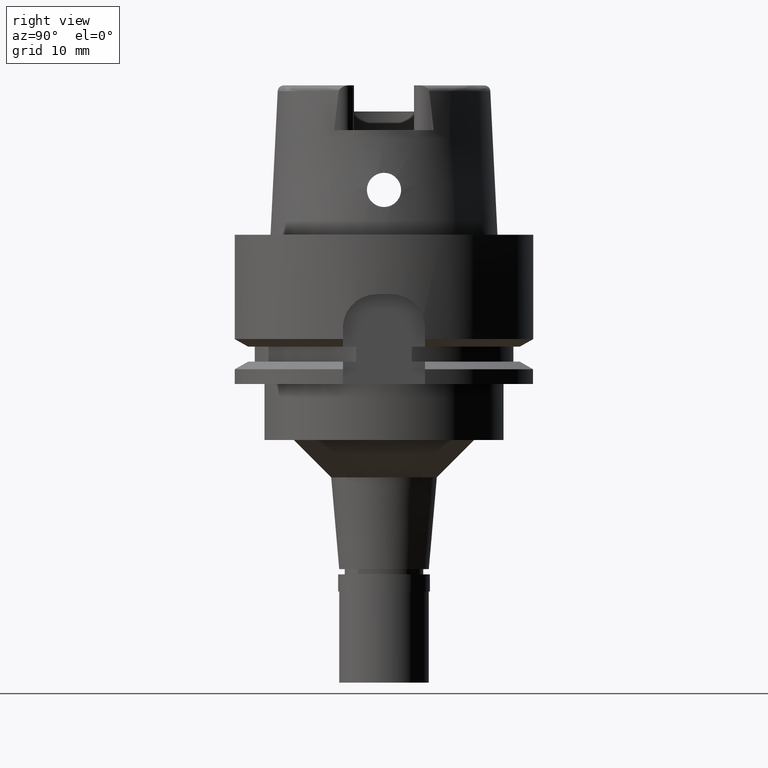
[diagram: clean part render]
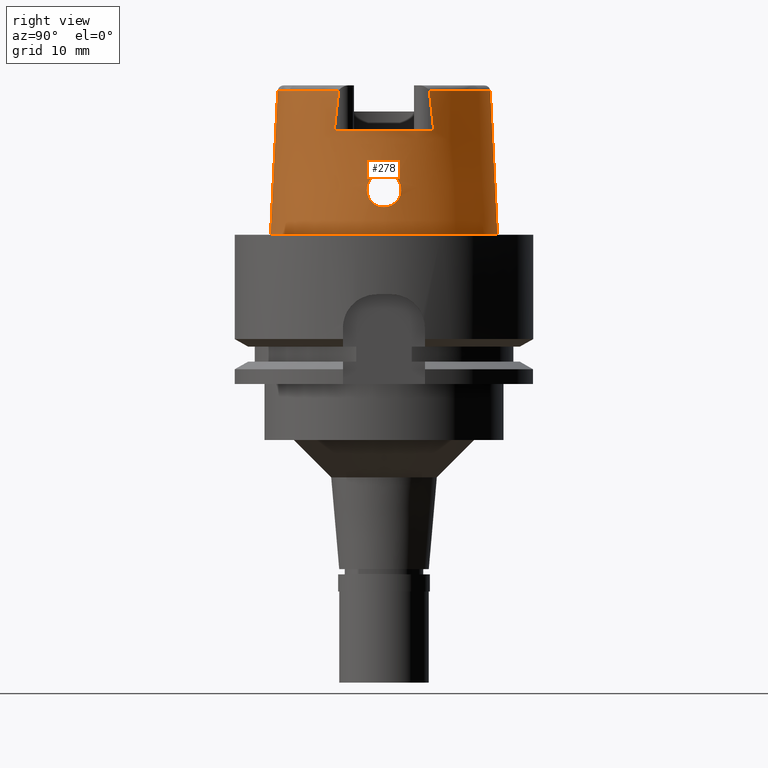
[diagram: same view with one face highlighted and labeled with its STEP entity id]
A machine part, right view. The second image highlights one B-rep face of the part: STEP entity #278.
In plain terms, the highlighted conical surface has half-angle 2.862 deg.
Its self-contained STEP definition (entity closure, byte-faithful):
#38 = EDGE_CURVE ( 'NONE', #2956, #3375, #676, .T. ) ;
#136 = CARTESIAN_POINT ( 'NONE',  ( 14.71767625970004190, -2.299002582693101981, 6.076948641586127131 ) ) ;
#165 = CARTESIAN_POINT ( 'NONE',  ( 14.75228631506212196, -1.217310660498344133, 7.951655185549658889 ) ) ;
#172 = CARTESIAN_POINT ( 'NONE',  ( 14.73141587697682553, 2.293502586207446292, 5.823495551064224784 ) ) ;
#178 = VERTEX_POINT ( 'NONE', #3545 ) ;
#195 = CARTESIAN_POINT ( 'NONE',  ( 14.76993171643134062, -0.8162572405183543545, 8.150449937431961445 ) ) ;
#199 = CARTESIAN_POINT ( 'NONE',  ( 14.89874937048598547, 1.588294339937097677, 4.336436091918786317 ) ) ;
#218 = CARTESIAN_POINT ( 'NONE',  ( 14.72916548316760732, -1.626404358665610062, 7.626288617414119564 ) ) ;
#221 = CARTESIAN_POINT ( 'NONE',  ( 14.70316458318627539, 2.128786717770993597, 6.870819045354424226 ) ) ;
#241 = CARTESIAN_POINT ( 'NONE',  ( 14.70734865897767030, -2.012829096111526272, 7.114972761334357187 ) ) ;
#250 = CARTESIAN_POINT ( 'NONE',  ( 14.81276530918017542, 2.042075185501032841, 4.941057185734546664 ) ) ;
#273 = CARTESIAN_POINT ( 'NONE',  ( 14.79665847417233238, 2.107828384196535954, 5.079440114917678883 ) ) ;
#278 = ADVANCED_FACE ( 'NONE', ( #1580, #2836 ), #1092, .T. ) ;
#323 = CARTESIAN_POINT ( 'NONE',  ( 14.74847246292093850, 1.290096246370493915, 7.904119940138124356 ) ) ;
#336 = EDGE_CURVE ( 'NONE', #1242, #2491, #1003, .T. ) ;
#353 = CARTESIAN_POINT ( 'NONE',  ( 14.76533985865896881, 0.9349772983325833620, 8.101496177720308722 ) ) ;
#360 = DIRECTION ( 'NONE',  ( 0.9046212760392207120, -0.4262163147243098749, 0.0000000000000000000 ) ) ;
#366 = EDGE_LOOP ( 'NONE', ( #2112, #5140, #4776, #3522, #2845, #5173, #3252, #5054 ) ) ;
#469 = DIRECTION ( 'NONE',  ( 0.0000000000000000000, 0.0000000000000000000, -1.000000000000000000 ) ) ;
#476 = CARTESIAN_POINT ( 'NONE',  ( 0.0000000000000000000, 1.342457523729000028E-14, 14.00000000000000000 ) ) ;
#497 = CARTESIAN_POINT ( 'NONE',  ( 15.00364376493542196, 0.5092072746798816940, 3.755833491668623125 ) ) ;
#557 = CARTESIAN_POINT ( 'NONE',  ( 14.73231278931818444, -1.575466967164326437, 7.676104568226610247 ) ) ;
#576 = DIRECTION ( 'NONE',  ( 0.0000000000000000000, 0.0000000000000000000, 1.000000000000000000 ) ) ;
#583 = CARTESIAN_POINT ( 'NONE',  ( 14.76141212800968816, -2.229000420792751846, 5.427573020413282379 ) ) ;
#609 = CARTESIAN_POINT ( 'NONE',  ( 14.72141866946021693, -1.755152768537556529, 7.496973021721498043 ) ) ;
#613 = CARTESIAN_POINT ( 'NONE',  ( 14.90244606698512264, 1.564221168109756643, 4.313564913394053235 ) ) ;
#641 = CARTESIAN_POINT ( 'NONE',  ( 14.72894740190619878, -1.629897061922214618, 7.622786359402593526 ) ) ;
#646 = CARTESIAN_POINT ( 'NONE',  ( 14.85058644495361868, 1.867006390483603839, 4.654736456440725867 ) ) ;
#664 = CARTESIAN_POINT ( 'NONE',  ( 14.70276236840794581, -2.228093348387354844, 6.589865896464043971 ) ) ;
#667 = CARTESIAN_POINT ( 'NONE',  ( 14.73849372628558818, 2.283477778816184411, 5.715463592153516181 ) ) ;
#676 = CIRCLE ( 'NONE', #3465, 14.49998341749000730 ) ;
#684 = EDGE_CURVE ( 'NONE', #178, #3923, #3905, .T. ) ;
#687 = CARTESIAN_POINT ( 'NONE',  ( 15.01500049747999910, 0.0000000000000000000, 3.700000000000000178 ) ) ;
#690 = CARTESIAN_POINT ( 'NONE',  ( 14.98148096618434266, 0.8665457444615898286, 3.869470622001208948 ) ) ;
#715 = CARTESIAN_POINT ( 'NONE',  ( 14.97211963843678539, 0.9852319895332828370, 3.918198108977875460 ) ) ;
#719 = DIRECTION ( 'NONE',  ( 0.0000000000000000000, 0.04993926899656212642, -0.9987522562738413434 ) ) ;
#735 = CARTESIAN_POINT ( 'NONE',  ( 14.76437919039956270, 0.9579855228098469455, 8.091067039116316195 ) ) ;
#759 = CARTESIAN_POINT ( 'NONE',  ( 14.89006592629557524, -1.643013560711590992, 4.390467205846114496 ) ) ;
#789 = CARTESIAN_POINT ( 'NONE',  ( 14.83194418996438202, -1.956775742093797010, 4.790948031796865791 ) ) ;
#896 = CARTESIAN_POINT ( 'NONE',  ( 12.88000000001000167, -6.659963896840999986, 14.00000000000000000 ) ) ;
#905 = CARTESIAN_POINT ( 'NONE',  ( 15.01216131434386725, 0.2892617628193787649, 3.713380421805315024 ) ) ;
#923 = CARTESIAN_POINT ( 'NONE',  ( 12.87999235482999794, -6.068467499471000615, 19.23976188443000268 ) ) ;
#947 = B_SPLINE_CURVE_WITH_KNOTS ( 'NONE', 3,
 ( #1732, #1704, #4238, #2518 ),
 .UNSPECIFIED., .F., .F.,
 ( 4, 4 ),
 ( 0.0000000000000000000, 1.000000000000000000 ),
 .UNSPECIFIED. ) ;
#955 = CARTESIAN_POINT ( 'NONE',  ( 14.76254134879655133, -1.002543099455074360, 8.071382481863379255 ) ) ;
#962 = CARTESIAN_POINT ( 'NONE',  ( 15.01500049748000798, 0.1430262828768870953, 3.700000000000001954 ) ) ;
#987 = CARTESIAN_POINT ( 'NONE',  ( 14.75791429779261676, -1.102961271661919485, 8.018639627650955504 ) ) ;
#1003 = CIRCLE ( 'NONE', #2034, 14.23797715756000315 ) ;
#1013 = CARTESIAN_POINT ( 'NONE',  ( 14.72980081936482577, -1.616212752232294658, 7.636443267789803535 ) ) ;
#1022 = CARTESIAN_POINT ( 'NONE',  ( 14.73773361949272243, 1.484091672816620688, 7.758016757752243642 ) ) ;
#1043 = CARTESIAN_POINT ( 'NONE',  ( 14.70908610932427329, -1.977317371658061207, 7.177218298108765104 ) ) ;
#1048 = CARTESIAN_POINT ( 'NONE',  ( 14.70267385795589554, 2.192066129422513665, 6.697352079167274042 ) ) ;
#1061 = AXIS2_PLACEMENT_3D ( 'NONE', #1853, #576, #2172 ) ;
#1067 = CARTESIAN_POINT ( 'NONE',  ( 14.72895214007647269, -1.629820688689543218, 7.622863066839102864 ) ) ;
#1072 = CARTESIAN_POINT ( 'NONE',  ( 14.72890820762632913, 1.630547541442574744, 7.622132767570231060 ) ) ;
#1092 = CONICAL_SURFACE ( 'NONE', #4845, 14.71899189528999941, 0.04996004983832824653 ) ;
#1094 = CARTESIAN_POINT ( 'NONE',  ( 14.85758912622367056, -1.829465614578048127, 4.604014456386703813 ) ) ;
#1098 = CARTESIAN_POINT ( 'NONE',  ( 14.91310040128086278, 1.491596977094940657, 4.248715427885991325 ) ) ;
#1103 = VERTEX_POINT ( 'NONE', #5167 ) ;
#1118 = CARTESIAN_POINT ( 'NONE',  ( 15.01500049748000976, -0.2875035635757235974, 3.700000000000000178 ) ) ;
#1121 = CARTESIAN_POINT ( 'NONE',  ( 14.70427108765025537, 2.079072153534958112, 6.991204345735112291 ) ) ;
#1143 = CARTESIAN_POINT ( 'NONE',  ( 14.95142920726407354, -1.189364500599814134, 4.029933525659705751 ) ) ;
#1153 = DIRECTION ( 'NONE',  ( 0.0000000000000000000, -1.000000000000000000, 0.0000000000000000000 ) ) ;
#1166 = CARTESIAN_POINT ( 'NONE',  ( 14.77198895599761386, -2.195978878843794391, 5.315014128331677412 ) ) ;
#1193 = CARTESIAN_POINT ( 'NONE',  ( 14.82171604948048049, -2.003677436404591727, 4.869988757433167059 ) ) ;
#1219 = CARTESIAN_POINT ( 'NONE',  ( 14.76682797686947524, 0.8979533740441775214, 8.117473815995689179 ) ) ;
#1226 = CARTESIAN_POINT ( 'NONE',  ( 0.0000000000000000000, 1.342457523729000028E-14, 9.619975707600000092 ) ) ;
#1242 = VERTEX_POINT ( 'NONE', #5362 ) ;
#1358 = CARTESIAN_POINT ( 'NONE',  ( 14.74919042734418362, -1.276605933380732694, 7.913187108520279622 ) ) ;
#1376 = CIRCLE ( 'NONE', #4604, 14.23797715755999782 ) ;
#1389 = CARTESIAN_POINT ( 'NONE',  ( 14.70352691453511618, -2.113722125166870303, 6.906774030892097294 ) ) ;
#1421 = CARTESIAN_POINT ( 'NONE',  ( 14.76817753171319758, -0.8632320482297011210, 8.131866818023137711 ) ) ;
#1426 = CARTESIAN_POINT ( 'NONE',  ( 14.72897162154008655, 1.629492673762285238, 7.623193086134354424 ) ) ;
#1445 = CARTESIAN_POINT ( 'NONE',  ( 14.76520709175152923, -0.9397137385385229136, 8.100200530211534300 ) ) ;
#1453 = CARTESIAN_POINT ( 'NONE',  ( 14.70331942151415916, 2.224931728614660820, 6.587787508650070123 ) ) ;
#1472 = CARTESIAN_POINT ( 'NONE',  ( 14.70331610145946577, -2.122033033464918006, 6.887168763623463974 ) ) ;
#1477 = CARTESIAN_POINT ( 'NONE',  ( 14.70693175492837135, 2.017990185375086565, 7.113643816040142731 ) ) ;
#1500 = CARTESIAN_POINT ( 'NONE',  ( 14.72032078236328623, 1.774994588814734930, 7.463238833077070922 ) ) ;
#1504 = EDGE_CURVE ( 'NONE', #2491, #3663, #2166, .T. ) ;
#1516 = CARTESIAN_POINT ( 'NONE',  ( 14.83552753177908912, -1.939738082407616915, 4.764066888189723237 ) ) ;
#1520 = CARTESIAN_POINT ( 'NONE',  ( 14.82509907391835036, 1.988183648409787452, 4.841186137168685732 ) ) ;
#1544 = CARTESIAN_POINT ( 'NONE',  ( 14.92935449852489427, -1.380129507212131568, 4.153857573818053872 ) ) ;
#1572 = CARTESIAN_POINT ( 'NONE',  ( 14.79786671459564928, -2.103604988163472189, 5.067853605972056030 ) ) ;
#1574 = CARTESIAN_POINT ( 'NONE',  ( 14.75631241698364526, 1.137656487422808338, 8.000363067000138884 ) ) ;
#1580 = FACE_OUTER_BOUND ( 'NONE', #366, .T. ) ;
#1589 = B_SPLINE_CURVE_WITH_KNOTS ( 'NONE', 3,
 ( #896, #5052, #4670, #923 ),
 .UNSPECIFIED., .F., .F.,
 ( 4, 4 ),
 ( 0.0000000000000000000, 1.000000000000000000 ),
 .UNSPECIFIED. ) ;
#1594 = CARTESIAN_POINT ( 'NONE',  ( 14.97982148424780036, -0.8874131963936028322, 3.878068404993943563 ) ) ;
#1606 = CARTESIAN_POINT ( 'NONE',  ( 0.0000000000000000000, 1.459778984583999657E-14, 19.23995141520000018 ) ) ;
#1623 = CARTESIAN_POINT ( 'NONE',  ( 14.74876045483737919, 1.284696013801750247, 7.907764096513406393 ) ) ;
#1645 = CIRCLE ( 'NONE', #1061, 15.20000663301000010 ) ;
#1650 = B_SPLINE_CURVE_WITH_KNOTS ( 'NONE', 3,
 ( #5169, #2306, #2233, #3138, #4817, #3110, #1886, #195, #3476, #1421, #3561, #2722, #1445, #955, #987, #5220, #3083, #165, #3535, #4787, #1861, #1358, #3919, #3950, #2259, #557, #4759, #1013, #5137, #218, #2667, #4361, #1067, #641, #3998, #5193, #609, #4704, #1043, #241, #2696, #4391, #2287, #1389, #3975, #1472, #4413, #664, #1909, #5111, #2614, #3057, #136, #2208, #4736, #2640, #4331, #583, #1166, #3640, #4099, #3612, #2823, #3218, #1572, #4512, #4022, #1193, #5276, #789, #1516, #2008, #5300, #3242, #1094, #2747, #2852, #4912, #1980, #759, #3190, #2410, #1544, #1143, #3695, #4462, #4860, #2331, #5255, #4438, #1594, #4840, #1118, #687 ),
 .UNSPECIFIED., .F., .F.,
 ( 4, 2, 2, 1, 1, 1, 2, 2, 2, 2, 1, 1, 1, 2, 2, 2, 2, 2, 1, 1, 1, 2, 2, 2, 2, 1, 1, 2, 2, 2, 2, 2, 2, 2, 2, 1, 1, 2, 2, 2, 2, 1, 2, 2, 2, 1, 1, 2, 2, 2, 2, 1, 1, 2, 2, 4 ),
 ( 0.0000000000000000000, 0.06250000000007399636, 0.09375000000011098067, 0.1093750000001295075, 0.1171875000001387501, 0.1210937500001432326, 0.1230468750001456057, 0.1250000000001479927, 0.1562500000001862399, 0.1718750000002054468, 0.1796875000002152445, 0.1835937500002201572, 0.1855468750002224609, 0.1865234375002237099, 0.1875000000002249867, 0.2187500000002663147, 0.2343750000002870204, 0.2421875000002973455, 0.2460937500003024248, 0.2480468750003053668, 0.2490234375003047562, 0.2495117187503044509, 0.2500000000003041456, 0.3125000000002758349, 0.3437500000002616796, 0.3593750000002546297, 0.3671875000002512435, 0.3710937500002496336, 0.3750000000002479128, 0.4375000000002196576, 0.4687500000002055023, 0.4843750000001985079, 0.5000000000001914024, 0.5625000000001644240, 0.5937500000001509903, 0.6093750000001443290, 0.6171875000001411093, 0.6210937500001395550, 0.6250000000001381117, 0.6562500000001273426, 0.6718750000001220135, 0.6796875000001192380, 0.6835937500001180167, 0.6875000000001166844, 0.7187500000001063594, 0.7343750000001009193, 0.7421875000000982547, 0.7460937500000967004, 0.7500000000000952571, 0.8125000000000712763, 0.8437500000000595080, 0.8593750000000534017, 0.8671875000000504041, 0.8710937500000488498, 0.8750000000000474065, 1.000000000000000000 ),
 .UNSPECIFIED. ) ;
#1658 = CARTESIAN_POINT ( 'NONE',  ( 0.0000000000000000000, 1.459778984583999657E-14, 19.23995141520000018 ) ) ;
#1704 = CARTESIAN_POINT ( 'NONE',  ( 12.88000426041353208, 6.264427332332246579, 17.56902546515146213 ) ) ;
#1726 = CARTESIAN_POINT ( 'NONE',  ( 0.0000000000000000000, -14.23797715755999782, 19.23995141520000018 ) ) ;
#1732 = CARTESIAN_POINT ( 'NONE',  ( 12.88000642478999858, 6.068395837171999929, 19.23995141520000018 ) ) ;
#1750 = CARTESIAN_POINT ( 'NONE',  ( 0.0000000000000000000, 15.20000663301000010, 5.684341886080998387E-14 ) ) ;
#1814 = EDGE_CURVE ( 'NONE', #3923, #178, #1650, .T. ) ;
#1835 = CARTESIAN_POINT ( 'NONE',  ( 14.72920898909261389, 2.295956629724304587, 5.859173630733694793 ) ) ;
#1853 = CARTESIAN_POINT ( 'NONE',  ( 0.0000000000000000000, 1.342457523729000028E-14, 5.684341886080998387E-14 ) ) ;
#1861 = CARTESIAN_POINT ( 'NONE',  ( 14.74943395429672854, -1.272009482133531932, 7.916246199921465276 ) ) ;
#1865 = CARTESIAN_POINT ( 'NONE',  ( 14.93067085956539586, 1.362081213460759388, 4.144859030512717091 ) ) ;
#1884 = EDGE_CURVE ( 'NONE', #3987, #2956, #947, .T. ) ;
#1886 = CARTESIAN_POINT ( 'NONE',  ( 14.77224969526151988, -0.7504315452637793094, 8.174775488228240405 ) ) ;
#1892 = CARTESIAN_POINT ( 'NONE',  ( 14.98233880085519587, 0.8555171635354590354, 3.865009476150681689 ) ) ;
#1909 = CARTESIAN_POINT ( 'NONE',  ( 14.70725146919830806, -2.271296696674846238, 6.369860449235602573 ) ) ;
#1916 = CARTESIAN_POINT ( 'NONE',  ( 14.89480408139225176, 1.613594842503107252, 4.360975711325354887 ) ) ;
#1939 = CARTESIAN_POINT ( 'NONE',  ( 14.96044863519054857, 1.107243322350721426, 3.978464806064026416 ) ) ;
#1980 = CARTESIAN_POINT ( 'NONE',  ( 14.88789267672697569, -1.656189432506797177, 4.404028214600329783 ) ) ;
#2008 = CARTESIAN_POINT ( 'NONE',  ( 14.83794318965351877, -1.928155063099321165, 4.746073152908883763 ) ) ;
#2034 = AXIS2_PLACEMENT_3D ( 'NONE', #1606, #4196, #360 ) ;
#2035 = CARTESIAN_POINT ( 'NONE',  ( 14.78499286951999991, -6.884507511411997731E-14, 8.300000000000000711 ) ) ;
#2061 = CARTESIAN_POINT ( 'NONE',  ( 14.74608686374363309, 1.334479646745683201, 7.873420511268546029 ) ) ;
#2096 = CARTESIAN_POINT ( 'NONE',  ( 0.0000000000000000000, -15.20000663301000010, 1.527666881883999820E-13 ) ) ;
#2112 = ORIENTED_EDGE ( 'NONE', *, *, #3455, .T. ) ;
#2163 = DIRECTION ( 'NONE',  ( 0.8882768779220027167, 0.4593083802296007434, 0.0000000000000000000 ) ) ;
#2166 = LINE ( 'NONE', #1726, #4808 ) ;
#2172 = DIRECTION ( 'NONE',  ( 0.0000000000000000000, -1.000000000000000000, 0.0000000000000000000 ) ) ;
#2208 = CARTESIAN_POINT ( 'NONE',  ( 14.71946357150132201, -2.299931417574567316, 6.038631396490869996 ) ) ;
#2233 = CARTESIAN_POINT ( 'NONE',  ( 14.78353128680934425, -0.2842508077870649630, 8.287348239702737374 ) ) ;
#2259 = CARTESIAN_POINT ( 'NONE',  ( 14.73731322935646126, -1.491757212854901260, 7.752241755842974591 ) ) ;
#2265 = CARTESIAN_POINT ( 'NONE',  ( 14.89626255973261415, 1.604314165315595453, 4.351879905615374966 ) ) ;
#2287 = CARTESIAN_POINT ( 'NONE',  ( 14.70377975280852034, -2.104433637918413869, 6.928327330150398033 ) ) ;
#2290 = CARTESIAN_POINT ( 'NONE',  ( 14.70255504530075541, 2.174209788349426020, 6.751929027802959560 ) ) ;
#2306 = CARTESIAN_POINT ( 'NONE',  ( 14.78499286952000347, -0.1391443178128511649, 8.300000000000004263 ) ) ;
#2312 = CARTESIAN_POINT ( 'NONE',  ( 14.98371403018676595, 0.8374727235028129879, 3.857867046278657064 ) ) ;
#2331 = CARTESIAN_POINT ( 'NONE',  ( 14.97620123050037400, -0.9315650298692005338, 3.896984939982998775 ) ) ;
#2336 = CARTESIAN_POINT ( 'NONE',  ( 14.88524741299715437, 1.673832983251893891, 4.420767604266703010 ) ) ;
#2362 = CARTESIAN_POINT ( 'NONE',  ( 14.74496504134877561, 1.355034789434619524, 7.858533769061100571 ) ) ;
#2410 = CARTESIAN_POINT ( 'NONE',  ( 14.91207770429788404, -1.508033510748362671, 4.254843883691552087 ) ) ;
#2481 = VERTEX_POINT ( 'NONE', #1750 ) ;
#2491 = VERTEX_POINT ( 'NONE', #3841 ) ;
#2500 = DIRECTION ( 'NONE',  ( 0.0000000000000000000, 1.000000000000000000, 0.0000000000000000000 ) ) ;
#2518 = CARTESIAN_POINT ( 'NONE',  ( 12.88000000001000167, 6.659963896840999986, 14.00000000000000000 ) ) ;
#2533 = CARTESIAN_POINT ( 'NONE',  ( 15.00009478601523405, 0.5826109664704614000, 3.773707586094883659 ) ) ;
#2581 = CARTESIAN_POINT ( 'NONE',  ( 12.88000000001000167, -6.659963896840999986, 14.00000000000000000 ) ) ;
#2614 = CARTESIAN_POINT ( 'NONE',  ( 14.71314478544786297, -2.292722928692878526, 6.186483723912187038 ) ) ;
#2640 = CARTESIAN_POINT ( 'NONE',  ( 14.73740417386287049, -2.288223965528690673, 5.723351743464057506 ) ) ;
#2667 = CARTESIAN_POINT ( 'NONE',  ( 14.72904470529613619, -1.628337541179609937, 7.624351793635763208 ) ) ;
#2673 = CARTESIAN_POINT ( 'NONE',  ( 14.74145531237505402, 1.418445424564565904, 7.810745794140411924 ) ) ;
#2696 = CARTESIAN_POINT ( 'NONE',  ( 14.70535003485825243, -2.059696689897931421, 7.024114667794181699 ) ) ;
#2700 = CARTESIAN_POINT ( 'NONE',  ( 14.72510000376157713, 2.299199412090375816, 5.929779096424321772 ) ) ;
#2722 = CARTESIAN_POINT ( 'NONE',  ( 14.76759430106974236, -0.8784006115277462889, 8.125659336855521886 ) ) ;
#2725 = CARTESIAN_POINT ( 'NONE',  ( 14.72329514493144309, 2.299987528917621482, 5.962788372749198373 ) ) ;
#2747 = CARTESIAN_POINT ( 'NONE',  ( 14.87054952517660311, -1.757719365221303010, 4.516135905363566572 ) ) ;
#2753 = CARTESIAN_POINT ( 'NONE',  ( 14.70884834798430951, 2.286205315796554505, 6.292987651726250853 ) ) ;
#2780 = CARTESIAN_POINT ( 'NONE',  ( 14.72849940320244144, 1.637350214640302726, 7.615270147483292007 ) ) ;
#2823 = CARTESIAN_POINT ( 'NONE',  ( 14.78936246627974960, -2.135424661765528143, 5.145562157664562264 ) ) ;
#2836 = FACE_BOUND ( 'NONE', #3033, .T. ) ;
#2840 = EDGE_CURVE ( 'NONE', #1103, #2481, #4054, .T. ) ;
#2845 = ORIENTED_EDGE ( 'NONE', *, *, #2840, .F. ) ;
#2852 = CARTESIAN_POINT ( 'NONE',  ( 14.87704102443288079, -1.720762379263403474, 4.473081528570273413 ) ) ;
#2856 = CARTESIAN_POINT ( 'NONE',  ( 14.76721472501559695, 0.8881463648275682576, 8.121608339782209640 ) ) ;
#2919 = DIRECTION ( 'NONE',  ( 0.0000000000000000000, 0.0000000000000000000, -1.000000000000000000 ) ) ;
#2956 = VERTEX_POINT ( 'NONE', #5284 ) ;
#3033 = EDGE_LOOP ( 'NONE', ( #5041, #4763 ) ) ;
#3057 = CARTESIAN_POINT ( 'NONE',  ( 14.71456559357674010, -2.295400163583385389, 6.149906830040777983 ) ) ;
#3075 = EDGE_CURVE ( 'NONE', #1103, #3987, #1376, .T. ) ;
#3083 = CARTESIAN_POINT ( 'NONE',  ( 14.75363946424168127, -1.190479772728968877, 7.968039648761720883 ) ) ;
#3087 = CARTESIAN_POINT ( 'NONE',  ( 14.73066733280895413, 1.603003007478596587, 7.651077491299814071 ) ) ;
#3110 = CARTESIAN_POINT ( 'NONE',  ( 14.77403099919012064, -0.6940052000294310020, 8.193146594062753252 ) ) ;
#3118 = CARTESIAN_POINT ( 'NONE',  ( 14.99024636951172695, 0.7469238850230833782, 3.824062172420758188 ) ) ;
#3138 = CARTESIAN_POINT ( 'NONE',  ( 14.77914653867739858, -0.5065138973274035950, 8.244801504513016965 ) ) ;
#3145 = CARTESIAN_POINT ( 'NONE',  ( 14.72728666678592546, 1.657559654257809045, 7.594586816972578980 ) ) ;
#3172 = CARTESIAN_POINT ( 'NONE',  ( 14.91762709437559487, 1.459190660860757882, 4.221667655515433104 ) ) ;
#3190 = CARTESIAN_POINT ( 'NONE',  ( 14.89100076858906974, -1.637317728025526442, 4.384665109148559559 ) ) ;
#3195 = CARTESIAN_POINT ( 'NONE',  ( 14.71589640493666096, 1.851366427317603369, 7.367163868593136655 ) ) ;
#3218 = CARTESIAN_POINT ( 'NONE',  ( 14.79060930388533457, -2.130790916913405830, 5.134093906436707933 ) ) ;
#3242 = CARTESIAN_POINT ( 'NONE',  ( 14.84897899300120017, -1.874404310358770420, 4.664961216213280970 ) ) ;
#3252 = ORIENTED_EDGE ( 'NONE', *, *, #1884, .T. ) ;
#3298 = CARTESIAN_POINT ( 'NONE',  ( 14.74279795622877387, 1.394442728218094452, 7.829370843485280673 ) ) ;
#3330 = CARTESIAN_POINT ( 'NONE',  ( 14.74806662226026788, 1.297686443524685540, 7.898955230020735740 ) ) ;
#3375 = VERTEX_POINT ( 'NONE', #2581 ) ;
#3455 = EDGE_CURVE ( 'NONE', #3375, #1242, #1589, .T. ) ;
#3465 = AXIS2_PLACEMENT_3D ( 'NONE', #476, #3876, #2163 ) ;
#3476 = CARTESIAN_POINT ( 'NONE',  ( 14.76871277928789539, -0.8491451473285233087, 8.137552740376674976 ) ) ;
#3513 = CARTESIAN_POINT ( 'NONE',  ( 14.72879180672478938, 1.632483996167512164, 7.620184531741159617 ) ) ;
#3522 = ORIENTED_EDGE ( 'NONE', *, *, #4756, .T. ) ;
#3535 = CARTESIAN_POINT ( 'NONE',  ( 14.75063890576927861, -1.249108475831979037, 7.931304236995173618 ) ) ;
#3540 = CARTESIAN_POINT ( 'NONE',  ( 14.93865161756607840, 1.297501774913487393, 4.099437656139806485 ) ) ;
#3545 = CARTESIAN_POINT ( 'NONE',  ( 15.01500049747999910, 0.0000000000000000000, 3.700000000000000178 ) ) ;
#3561 = CARTESIAN_POINT ( 'NONE',  ( 14.76781784534299291, -0.8726212665721332362, 8.128040841714508247 ) ) ;
#3570 = CARTESIAN_POINT ( 'NONE',  ( 14.79479495241556108, 2.115032889426810669, 5.096087091513028078 ) ) ;
#3594 = CARTESIAN_POINT ( 'NONE',  ( 14.74382187336622962, 2.273242704795811253, 5.642106352514333345 ) ) ;
#3612 = CARTESIAN_POINT ( 'NONE',  ( 14.78733735408462557, -2.142864407737079979, 5.164395642337312964 ) ) ;
#3616 = CARTESIAN_POINT ( 'NONE',  ( 14.98574360250673720, 0.8103726428891951938, 3.847338291337811800 ) ) ;
#3626 = CARTESIAN_POINT ( 'NONE',  ( 14.78499286951999991, -6.884507511411997731E-14, 8.300000000000000711 ) ) ;
#3640 = CARTESIAN_POINT ( 'NONE',  ( 14.77750220501771494, -2.177863819260625888, 5.258579906043358676 ) ) ;
#3663 = VERTEX_POINT ( 'NONE', #2096 ) ;
#3695 = CARTESIAN_POINT ( 'NONE',  ( 14.95814736307691106, -1.125923090379436386, 3.993190079450564589 ) ) ;
#3698 = CARTESIAN_POINT ( 'NONE',  ( 14.77912791463194786, 0.5826487076461225323, 8.248701685567663588 ) ) ;
#3748 = CARTESIAN_POINT ( 'NONE',  ( 14.76639185839179902, 0.9089374352585476435, 8.112804899951060023 ) ) ;
#3841 = CARTESIAN_POINT ( 'NONE',  ( 0.0000000000000000000, -14.23797715755999782, 19.23995141520000018 ) ) ;
#3876 = DIRECTION ( 'NONE',  ( 0.0000000000000000000, 0.0000000000000000000, -1.000000000000000000 ) ) ;
#3905 = B_SPLINE_CURVE_WITH_KNOTS ( 'NONE', 3,
 ( #5116, #962, #905, #497, #2533, #4367, #3118, #3616, #2312, #1892, #690, #715, #1939, #3540, #1865, #3172, #1098, #3924, #613, #199, #2265, #1916, #2336, #4417, #3953, #646, #4030, #1520, #250, #5174, #5198, #273, #3570, #4396, #4003, #3594, #667, #172, #1835, #2700, #2725, #4843, #2753, #4793, #1453, #1048, #2290, #3980, #5258, #5228, #221, #1121, #1477, #5280, #3195, #1500, #4864, #4442, #3145, #4821, #2780, #4468, #3513, #1072, #1426, #3087, #4766, #1022, #2673, #3298, #2362, #2061, #4941, #3330, #323, #1623, #4969, #1574, #4494, #4079, #735, #353, #3748, #1219, #4997, #2856, #3698, #4050, #2035 ),
 .UNSPECIFIED., .F., .F.,
 ( 4, 2, 2, 1, 1, 2, 2, 2, 2, 2, 1, 2, 2, 2, 2, 2, 1, 2, 2, 2, 2, 2, 2, 2, 2, 1, 1, 2, 2, 2, 2, 1, 1, 1, 1, 1, 2, 2, 2, 2, 2, 1, 1, 2, 2, 2, 2, 1, 1, 2, 2, 4 ),
 ( 0.0000000000000000000, 0.06250000000000290046, 0.09375000000000438538, 0.1093750000000050793, 0.1171875000000054678, 0.1210937500000056899, 0.1250000000000059119, 0.1875000000000086320, 0.2187500000000099643, 0.2343750000000106581, 0.2421875000000109635, 0.2460937500000109912, 0.2500000000000110467, 0.2812500000000110467, 0.3125000000000110467, 0.3437500000000110467, 0.3593750000000109912, 0.3671875000000109912, 0.3750000000000109357, 0.4375000000000106581, 0.4687500000000107137, 0.4843750000000107692, 0.5000000000000107692, 0.5625000000000114353, 0.5937500000000117684, 0.6093750000000122125, 0.6171875000000123235, 0.6210937500000124345, 0.6250000000000124345, 0.6875000000000165423, 0.7187500000000187628, 0.7343750000000198730, 0.7421875000000203171, 0.7460937500000207612, 0.7480468750000210942, 0.7490234375000210942, 0.7495117187500210942, 0.7500000000000210942, 0.7812500000000180966, 0.7968750000000164313, 0.8046875000000157652, 0.8085937500000153211, 0.8105468750000152101, 0.8115234375000150990, 0.8125000000000150990, 0.8437500000000157652, 0.8593750000000158762, 0.8671875000000159872, 0.8710937500000160982, 0.8730468750000159872, 0.8750000000000158762, 1.000000000000000000 ),
 .UNSPECIFIED. ) ;
#3919 = CARTESIAN_POINT ( 'NONE',  ( 14.74915329027382604, -1.277308904621333951, 7.912721628644407090 ) ) ;
#3923 = VERTEX_POINT ( 'NONE', #3626 ) ;
#3924 = CARTESIAN_POINT ( 'NONE',  ( 14.90604220459156615, 1.540040924829106705, 4.291568336601566003 ) ) ;
#3950 = CARTESIAN_POINT ( 'NONE',  ( 14.74230191946051605, -1.406047906588706375, 7.826369455954898413 ) ) ;
#3953 = CARTESIAN_POINT ( 'NONE',  ( 14.85945574196998109, 1.820889407643623503, 4.592856233117769804 ) ) ;
#3975 = CARTESIAN_POINT ( 'NONE',  ( 14.70337101300702543, -2.119800079373052704, 6.892472962621421395 ) ) ;
#3980 = CARTESIAN_POINT ( 'NONE',  ( 14.70277337650345117, 2.150872384138454052, 6.815106528974084199 ) ) ;
#3987 = VERTEX_POINT ( 'NONE', #5004 ) ;
#3998 = CARTESIAN_POINT ( 'NONE',  ( 14.72894505126244447, -1.629935077804047339, 7.622748176048799174 ) ) ;
#4003 = CARTESIAN_POINT ( 'NONE',  ( 14.76163505723253699, 2.230607858056752768, 5.419250815887505901 ) ) ;
#4022 = CARTESIAN_POINT ( 'NONE',  ( 14.81742000035747786, -2.022576272781418716, 4.904278878631861183 ) ) ;
#4030 = CARTESIAN_POINT ( 'NONE',  ( 14.83348555205558128, 1.949410989230922153, 4.777198438501983446 ) ) ;
#4050 = CARTESIAN_POINT ( 'NONE',  ( 14.78499286951999814, 0.2787127313394789363, 8.300000000000002487 ) ) ;
#4054 = LINE ( 'NONE', #5374, #4784 ) ;
#4079 = CARTESIAN_POINT ( 'NONE',  ( 14.76237924827713321, 1.004875060782754348, 8.069158429938271482 ) ) ;
#4099 = CARTESIAN_POINT ( 'NONE',  ( 14.78432779017018461, -2.153809964259166598, 5.192649884773186564 ) ) ;
#4196 = DIRECTION ( 'NONE',  ( 0.0000000000000000000, 0.0000000000000000000, -1.000000000000000000 ) ) ;
#4238 = CARTESIAN_POINT ( 'NONE',  ( 12.88001670702530355, 6.461541546161807759, 15.82237497037986707 ) ) ;
#4331 = CARTESIAN_POINT ( 'NONE',  ( 14.75496046942074280, -2.246734291465931843, 5.502193996503526030 ) ) ;
#4361 = CARTESIAN_POINT ( 'NONE',  ( 14.72897168123966338, -1.629507019489321307, 7.623178058644783484 ) ) ;
#4367 = CARTESIAN_POINT ( 'NONE',  ( 14.99370662395891074, 0.6922339275772008138, 3.806312339432339265 ) ) ;
#4391 = CARTESIAN_POINT ( 'NONE',  ( 14.70450261064866204, -2.081531398457827198, 6.979308741386685888 ) ) ;
#4396 = CARTESIAN_POINT ( 'NONE',  ( 14.77594883664261971, 2.186224250425064408, 5.266873562071664239 ) ) ;
#4413 = CARTESIAN_POINT ( 'NONE',  ( 14.70192203347195203, -2.184504394976447106, 6.735967917981922071 ) ) ;
#4417 = CARTESIAN_POINT ( 'NONE',  ( 14.87669115225124017, 1.724760763702476885, 4.476552553076835750 ) ) ;
#4438 = CARTESIAN_POINT ( 'NONE',  ( 14.97932994340853874, -0.8935037242535736057, 3.880632326866690907 ) ) ;
#4442 = CARTESIAN_POINT ( 'NONE',  ( 14.72570842674991276, 1.683931612174520032, 7.566908941516940601 ) ) ;
#4462 = CARTESIAN_POINT ( 'NONE',  ( 14.96726447614583044, -1.031976710282383580, 3.944210301343775704 ) ) ;
#4468 = CARTESIAN_POINT ( 'NONE',  ( 14.72867472671835465, 1.634432253397750667, 7.618219121036927000 ) ) ;
#4494 = CARTESIAN_POINT ( 'NONE',  ( 14.76094114605737140, 1.037300661249351386, 8.053152699866725328 ) ) ;
#4512 = CARTESIAN_POINT ( 'NONE',  ( 14.80517417293954630, -2.074782006280510238, 5.004531343267334620 ) ) ;
#4604 = AXIS2_PLACEMENT_3D ( 'NONE', #1658, #469, #2500 ) ;
#4670 = CARTESIAN_POINT ( 'NONE',  ( 12.87998480856108152, -6.264498849102749567, 17.56875139033252253 ) ) ;
#4704 = CARTESIAN_POINT ( 'NONE',  ( 14.71551356316505910, -1.855954510890809317, 7.366726195020571133 ) ) ;
#4736 = CARTESIAN_POINT ( 'NONE',  ( 14.72809821710293043, -2.300253994377235767, 5.867101065414821903 ) ) ;
#4756 = EDGE_CURVE ( 'NONE', #3663, #2481, #1645, .T. ) ;
#4759 = CARTESIAN_POINT ( 'NONE',  ( 14.73105974182505662, -1.595855071713093487, 7.656383864561299823 ) ) ;
#4763 = ORIENTED_EDGE ( 'NONE', *, *, #1814, .F. ) ;
#4766 = CARTESIAN_POINT ( 'NONE',  ( 14.73566080914294218, 1.519391864523683022, 7.727097925157929481 ) ) ;
#4776 = ORIENTED_EDGE ( 'NONE', *, *, #1504, .T. ) ;
#4784 = VECTOR ( 'NONE', #719, 1000.000000000000227 ) ;
#4787 = CARTESIAN_POINT ( 'NONE',  ( 14.74979801731036844, -1.265122560421511722, 7.920811763795634342 ) ) ;
#4793 = CARTESIAN_POINT ( 'NONE',  ( 14.70429371488368631, 2.243043492870628430, 6.514198421429752806 ) ) ;
#4808 = VECTOR ( 'NONE', #5126, 1000.000000000000227 ) ;
#4817 = CARTESIAN_POINT ( 'NONE',  ( 14.77731956028909011, -0.5813496651927194669, 8.226695616748752826 ) ) ;
#4821 = CARTESIAN_POINT ( 'NONE',  ( 14.72809239045508178, 1.644127852895748143, 7.608383307056701739 ) ) ;
#4840 = CARTESIAN_POINT ( 'NONE',  ( 15.00351347275112524, -0.5887822049342492647, 3.754668947782274113 ) ) ;
#4843 = CARTESIAN_POINT ( 'NONE',  ( 14.71406044070744734, 2.300049224763837330, 6.144951639284040645 ) ) ;
#4845 = AXIS2_PLACEMENT_3D ( 'NONE', #1226, #2919, #1153 ) ;
#4860 = CARTESIAN_POINT ( 'NONE',  ( 14.97158300251770768, -0.9853043043139166901, 3.921252939954885885 ) ) ;
#4864 = CARTESIAN_POINT ( 'NONE',  ( 14.72268477588709068, 1.734727623508124594, 7.511263497820825030 ) ) ;
#4912 = CARTESIAN_POINT ( 'NONE',  ( 14.88463421484654781, -1.675827824556985091, 4.424491581683718699 ) ) ;
#4941 = CARTESIAN_POINT ( 'NONE',  ( 14.74746264624864267, 1.308959093169953514, 7.891234945841369530 ) ) ;
#4969 = CARTESIAN_POINT ( 'NONE',  ( 14.75280736771525625, 1.208700089782435816, 7.958806937002935733 ) ) ;
#4997 = CARTESIAN_POINT ( 'NONE',  ( 14.76711544728777881, 0.8906701632798444956, 8.120547637669982777 ) ) ;
#5004 = CARTESIAN_POINT ( 'NONE',  ( 12.88000642478999858, 6.068395837171999929, 19.23995141520000018 ) ) ;
#5041 = ORIENTED_EDGE ( 'NONE', *, *, #684, .F. ) ;
#5052 = CARTESIAN_POINT ( 'NONE',  ( 12.87999628661343365, -6.461605147547063943, 15.82216419972265165 ) ) ;
#5054 = ORIENTED_EDGE ( 'NONE', *, *, #38, .T. ) ;
#5111 = CARTESIAN_POINT ( 'NONE',  ( 14.70928593585949251, -2.282011951321071042, 6.296377938080110148 ) ) ;
#5116 = CARTESIAN_POINT ( 'NONE',  ( 15.01500049747999910, 0.0000000000000000000, 3.700000000000000178 ) ) ;
#5126 = DIRECTION ( 'NONE',  ( 0.0000000000000000000, -0.04993926899656212642, -0.9987522562738413434 ) ) ;
#5137 = CARTESIAN_POINT ( 'NONE',  ( 14.72948462000799275, -1.621288164015403988, 7.631394467715409746 ) ) ;
#5140 = ORIENTED_EDGE ( 'NONE', *, *, #336, .T. ) ;
#5167 = CARTESIAN_POINT ( 'NONE',  ( 0.0000000000000000000, 14.23797715755999782, 19.23995141520000018 ) ) ;
#5169 = CARTESIAN_POINT ( 'NONE',  ( 14.78499286951999991, -6.884507511411997731E-14, 8.300000000000000711 ) ) ;
#5173 = ORIENTED_EDGE ( 'NONE', *, *, #3075, .T. ) ;
#5174 = CARTESIAN_POINT ( 'NONE',  ( 14.80665991492800515, 2.067953991250180756, 4.991963697099241593 ) ) ;
#5193 = CARTESIAN_POINT ( 'NONE',  ( 14.72900270378712406, -1.628975627586982888, 7.623711897687589278 ) ) ;
#5198 = CARTESIAN_POINT ( 'NONE',  ( 14.80064675285121645, 2.092115382864173867, 5.044267702737608161 ) ) ;
#5220 = CARTESIAN_POINT ( 'NONE',  ( 14.75626720802938685, -1.137456606759853273, 7.999470195136271222 ) ) ;
#5228 = CARTESIAN_POINT ( 'NONE',  ( 14.70307380549201959, 2.133187362045273261, 6.860002858744311816 ) ) ;
#5255 = CARTESIAN_POINT ( 'NONE',  ( 14.97809045975340325, -0.9087043565696507619, 3.887105153698169779 ) ) ;
#5258 = CARTESIAN_POINT ( 'NONE',  ( 14.70294343544039428, 2.140333083714231144, 6.842061476019653199 ) ) ;
#5276 = CARTESIAN_POINT ( 'NONE',  ( 14.82848128314049774, -1.972826740583132121, 4.817474388856116008 ) ) ;
#5280 = CARTESIAN_POINT ( 'NONE',  ( 14.71335163281357872, 1.896726642870509405, 7.303092389872578138 ) ) ;
#5284 = CARTESIAN_POINT ( 'NONE',  ( 12.88000000001000167, 6.659963896840999986, 14.00000000000000000 ) ) ;
#5300 = CARTESIAN_POINT ( 'NONE',  ( 14.83932649246535718, -1.921461049517379616, 4.735849371583144674 ) ) ;
#5362 = CARTESIAN_POINT ( 'NONE',  ( 12.87999235482999794, -6.068467499471000615, 19.23976188443000268 ) ) ;
#5374 = CARTESIAN_POINT ( 'NONE',  ( 0.0000000000000000000, 14.23797715755999782, 19.23995141520000018 ) ) ;